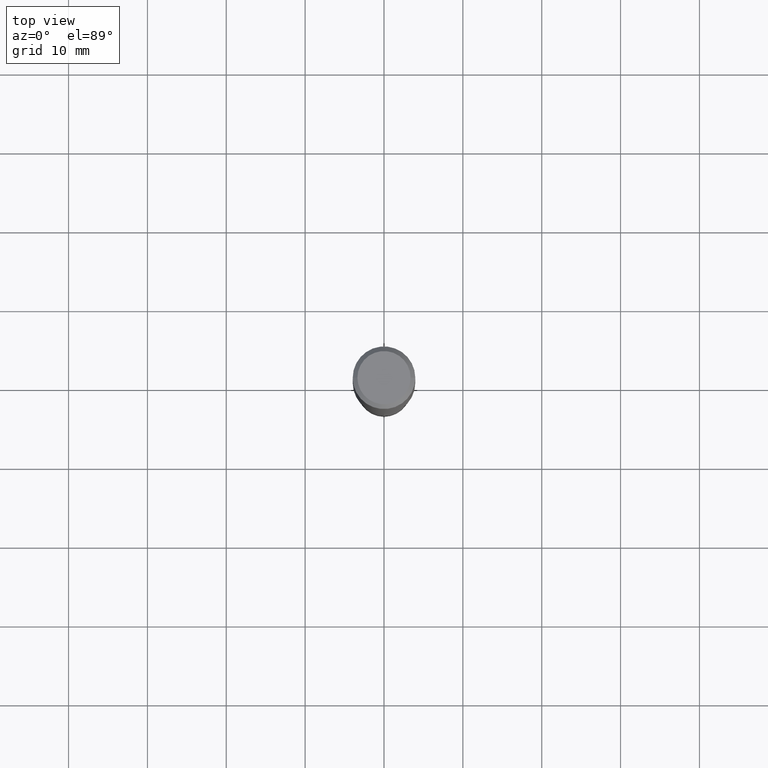
[diagram: clean part render]
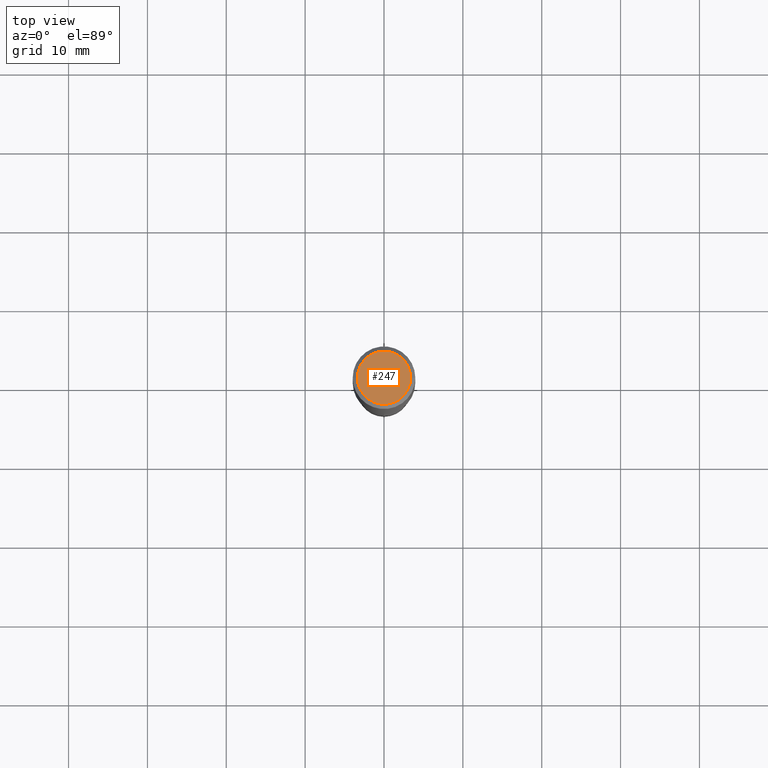
[diagram: same view with one face highlighted and labeled with its STEP entity id]
A machine part, top view. The second image highlights one B-rep face of the part: STEP entity #247.
In plain terms, the highlighted planar face has unit normal (0, -0, -1).
Its self-contained STEP definition (entity closure, byte-faithful):
#15 = EDGE_CURVE ( 'NONE', #452, #218, #142, .T. ) ;
#22 = ORIENTED_EDGE ( 'NONE', *, *, #183, .T. ) ;
#63 = CARTESIAN_POINT ( 'NONE',  ( -0.1328125000000000000, 9.683405275697749214E-16, 3.252968060228529177E-18 ) ) ;
#103 = AXIS2_PLACEMENT_3D ( 'NONE', #133, #324, #206 ) ;
#133 = CARTESIAN_POINT ( 'NONE',  ( -7.955031918821650812E-47, 1.135767727816383927E-32, 3.252968060235157842E-18 ) ) ;
#142 = CIRCLE ( 'NONE', #103, 0.1328125000000000000 ) ;
#165 = DIRECTION ( 'NONE',  ( 1.000000000000000000, -6.982962677686268288E-15, 4.876286914311434227E-29 ) ) ;
#171 = DIRECTION ( 'NONE',  ( -1.000000000000000000, 6.982962677686265922E-15, -4.876176775795935793E-29 ) ) ;
#183 = EDGE_CURVE ( 'NONE', #218, #452, #201, .T. ) ;
#201 = CIRCLE ( 'NONE', #274, 0.1328125000000000000 ) ;
#206 = DIRECTION ( 'NONE',  ( 1.000000000000000000, -6.982962677686268288E-15, 4.876286914311434227E-29 ) ) ;
#214 = PLANE ( 'NONE',  #388 ) ;
#218 = VERTEX_POINT ( 'NONE', #469 ) ;
#247 = ADVANCED_FACE ( 'NONE', ( #256 ), #214, .F. ) ;
#256 = FACE_OUTER_BOUND ( 'NONE', #370, .T. ) ;
#274 = AXIS2_PLACEMENT_3D ( 'NONE', #277, #430, #165 ) ;
#277 = CARTESIAN_POINT ( 'NONE',  ( -7.955031918821650812E-47, 1.135767727816383927E-32, 3.252968060235157842E-18 ) ) ;
#324 = DIRECTION ( 'NONE',  ( -2.445468806185136597E-29, 3.491481338843145583E-15, 1.000000000000000000 ) ) ;
#361 = DIRECTION ( 'NONE',  ( 2.438088387897960049E-29, -3.491481338843145188E-15, -1.000000000000000000 ) ) ;
#369 = CARTESIAN_POINT ( 'NONE',  ( -3.977515959410825406E-47, 5.678838639081919634E-33, 1.626484030117578921E-18 ) ) ;
#370 = EDGE_LOOP ( 'NONE', ( #377, #22 ) ) ;
#377 = ORIENTED_EDGE ( 'NONE', *, *, #15, .T. ) ;
#388 = AXIS2_PLACEMENT_3D ( 'NONE', #369, #361, #171 ) ;
#430 = DIRECTION ( 'NONE',  ( -2.445468806185136597E-29, 3.491481338843145583E-15, 1.000000000000000000 ) ) ;
#452 = VERTEX_POINT ( 'NONE', #63 ) ;
#469 = CARTESIAN_POINT ( 'NONE',  ( 0.1328125000000000000, -1.032472148179985084E-15, 3.252968060242010686E-18 ) ) ;